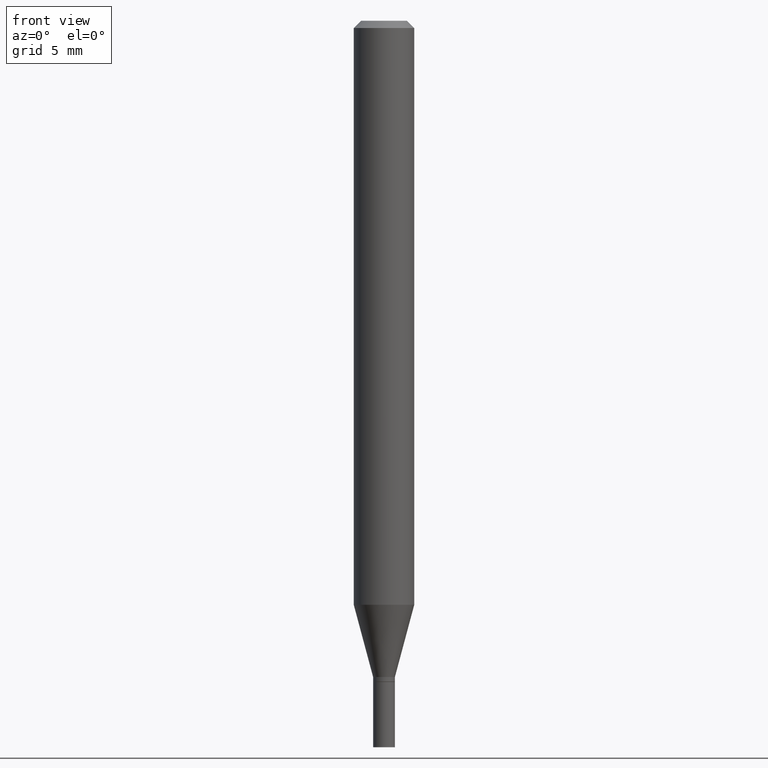
[diagram: clean part render]
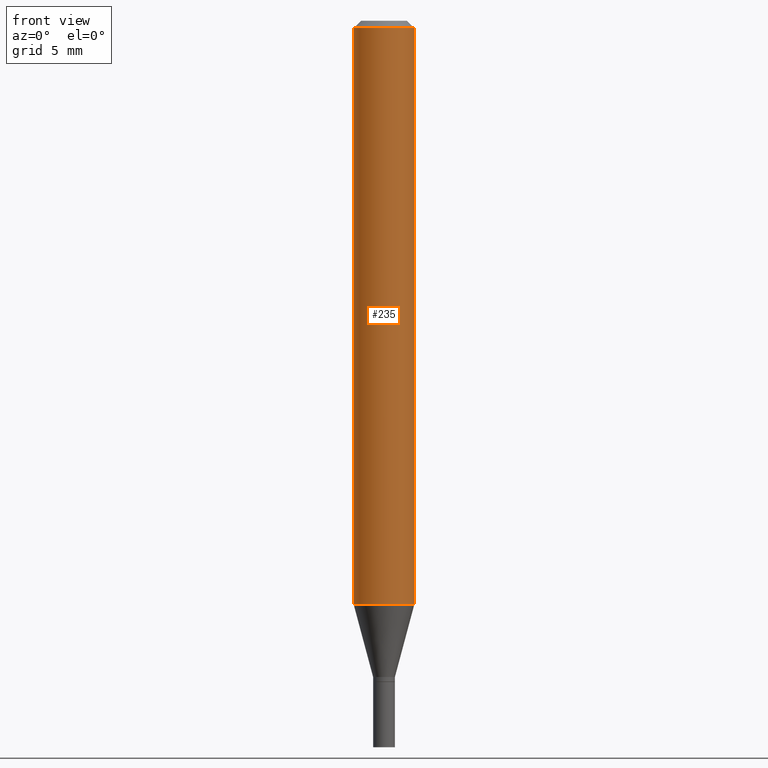
[diagram: same view with one face highlighted and labeled with its STEP entity id]
A machine part, front view. The second image highlights one B-rep face of the part: STEP entity #235.
In plain terms, the highlighted cylindrical surface (edge-blend (fillet) strip) has radius 1.5875 mm, axis along (-0, 0, 1).
Its self-contained STEP definition (entity closure, byte-faithful):
#18 = DIRECTION ( 'NONE',  ( 1.000000000000000000, -6.982962677686266711E-15, 4.876176775795935793E-29 ) ) ;
#36 = FACE_OUTER_BOUND ( 'NONE', #302, .T. ) ;
#71 = VECTOR ( 'NONE', #445, 39.37007874015748143 ) ;
#92 = CARTESIAN_POINT ( 'NONE',  ( 3.668203209277705088E-31, -5.237222008264718399E-17, -0.01499999999999999944 ) ) ;
#96 = LINE ( 'NONE', #212, #146 ) ;
#111 = DIRECTION ( 'NONE',  ( -2.445468806185136597E-29, 3.491481338843145583E-15, 1.000000000000000000 ) ) ;
#119 = DIRECTION ( 'NONE',  ( 1.000000000000000000, -6.982962677686266711E-15, 0.000000000000000000 ) ) ;
#146 = VECTOR ( 'NONE', #312, 39.37007874015748143 ) ;
#150 = EDGE_CURVE ( 'NONE', #259, #370, #459, .T. ) ;
#157 = AXIS2_PLACEMENT_3D ( 'NONE', #92, #198, #119 ) ;
#180 = CYLINDRICAL_SURFACE ( 'NONE', #373, 0.06250000000000000000 ) ;
#191 = VERTEX_POINT ( 'NONE', #211 ) ;
#198 = DIRECTION ( 'NONE',  ( -2.445468806185136597E-29, 3.491481338843145583E-15, 1.000000000000000000 ) ) ;
#200 = CARTESIAN_POINT ( 'NONE',  ( -0.06250000000000001388, -3.765652574272750998E-15, -1.205717967697245152 ) ) ;
#201 = ORIENTED_EDGE ( 'NONE', *, *, #416, .F. ) ;
#211 = CARTESIAN_POINT ( 'NONE',  ( -0.06250000000000000000, -1.686967792252667731E-15, -0.01499999999999999944 ) ) ;
#212 = CARTESIAN_POINT ( 'NONE',  ( -0.06250000000000000000, 4.440892098500626162E-16, -3.074334431409316114E-30 ) ) ;
#227 = LINE ( 'NONE', #404, #71 ) ;
#235 = ADVANCED_FACE ( 'NONE', ( #36 ), #180, .T. ) ;
#254 = AXIS2_PLACEMENT_3D ( 'NONE', #466, #111, #258 ) ;
#258 = DIRECTION ( 'NONE',  ( 1.000000000000000000, -6.982962677686270655E-15, 0.000000000000000000 ) ) ;
#259 = VERTEX_POINT ( 'NONE', #200 ) ;
#298 = EDGE_CURVE ( 'NONE', #370, #448, #227, .T. ) ;
#302 = EDGE_LOOP ( 'NONE', ( #435, #374, #405, #201 ) ) ;
#312 = DIRECTION ( 'NONE',  ( -2.445468806185136877E-29, 3.491481338843145188E-15, 1.000000000000000000 ) ) ;
#322 = CARTESIAN_POINT ( 'NONE',  ( 0.000000000000000000, 0.000000000000000000, 0.000000000000000000 ) ) ;
#329 = CARTESIAN_POINT ( 'NONE',  ( 0.06250000000000001388, -4.646176951478205284E-15, -1.205717967697245152 ) ) ;
#370 = VERTEX_POINT ( 'NONE', #329 ) ;
#373 = AXIS2_PLACEMENT_3D ( 'NONE', #322, #430, #18 ) ;
#374 = ORIENTED_EDGE ( 'NONE', *, *, #150, .T. ) ;
#381 = CIRCLE ( 'NONE', #157, 0.06250000000000000000 ) ;
#404 = CARTESIAN_POINT ( 'NONE',  ( 0.06250000000000000000, -4.364351673553916694E-16, 3.047610484872459871E-30 ) ) ;
#405 = ORIENTED_EDGE ( 'NONE', *, *, #298, .T. ) ;
#416 = EDGE_CURVE ( 'NONE', #191, #448, #381, .T. ) ;
#430 = DIRECTION ( 'NONE',  ( -2.445468806185136597E-29, 3.491481338843145583E-15, 1.000000000000000000 ) ) ;
#435 = ORIENTED_EDGE ( 'NONE', *, *, #453, .F. ) ;
#445 = DIRECTION ( 'NONE',  ( -2.445468806185136877E-29, 3.491481338843145188E-15, 1.000000000000000000 ) ) ;
#448 = VERTEX_POINT ( 'NONE', #463 ) ;
#453 = EDGE_CURVE ( 'NONE', #259, #191, #96, .T. ) ;
#459 = CIRCLE ( 'NONE', #254, 0.06250000000000000000 ) ;
#463 = CARTESIAN_POINT ( 'NONE',  ( 0.06250000000000000000, -4.888073874380388472E-16, -0.01499999999999999944 ) ) ;
#466 = CARTESIAN_POINT ( 'NONE',  ( 2.948545679060551070E-29, -4.209741784122813615E-15, -1.205717967697245152 ) ) ;